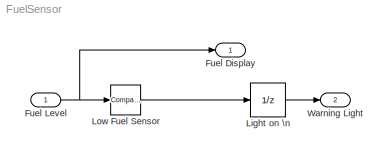
MODEL FuelSensor
KIND model
BLOCK [Outport] Fuel Display
  IconDisplay = Port number
  SID = 4
BLOCK [Inport] Fuel Level
  IconDisplay = Port number
  SID = 5
BLOCK [UnitDelay] Light on \n
  InputProcessing = Elements as channels (sample based)
  SID = 2
  SampleTime = -1
BLOCK [Reference] Low Fuel Sensor  REF=simulink/Logic and Bit\nOperations/Compare\nTo Constant
  OutDataTypeStr = boolean
  Ports = [1, 1]
  SID = 1
  SourceBlock = simulink/Logic and Bit\nOperations/Compare\nTo Constant
  SourceType = Compare To Constant
  ZeroCross = on
  const = 3.0
  relop = <=
BLOCK [Outport] Warning Light
  IconDisplay = Port number
  Port = 2
  SID = 6
NET Fuel Level:1 -> Fuel Display:1, Low Fuel Sensor:1
LINE Light on \n:1 -> Warning Light:1
LINE Low Fuel Sensor:1 -> Light on \n:1
note: NET lines group one-source signal fan-out (src -> all destinations, sorted); 1:1 wires keep LINE
